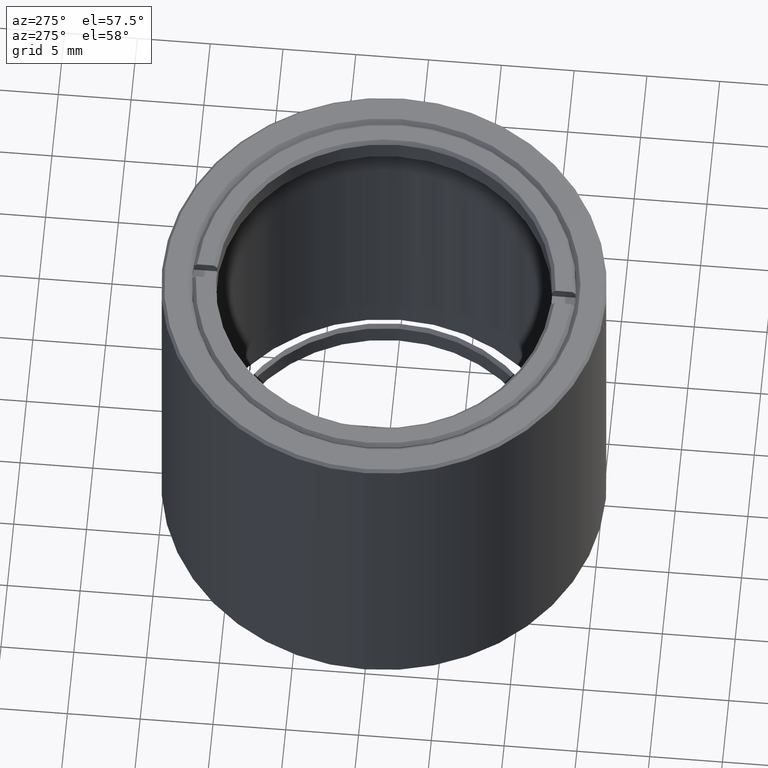
[diagram: clean part render]
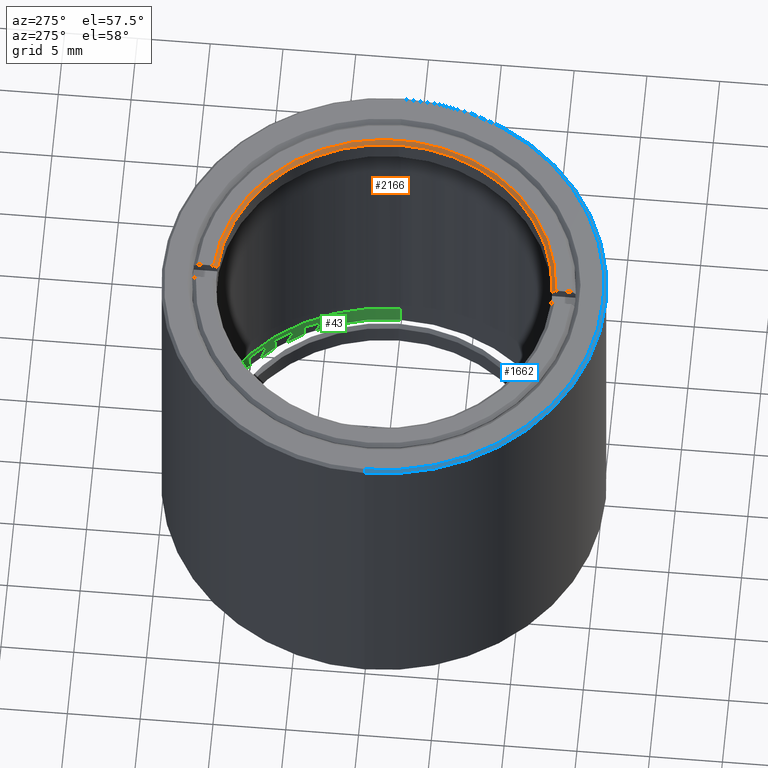
[diagram: same view with three faces highlighted in distinct colors, each labeled with its STEP entity id]
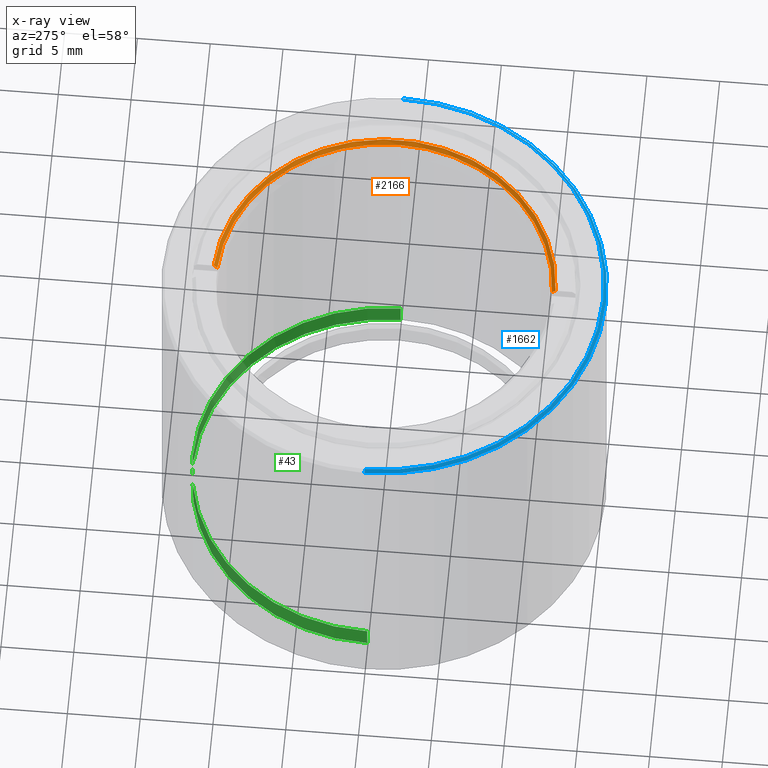
[diagram: x-ray of the same camera — body ghosted, the three highlighted faces saturated]
A machine part, auxiliary view with three faces highlighted in distinct colors.
The next image is the same camera in x-ray (body ghosted, the three faces saturated) — at least one of them is partly hidden behind the body in this view.
Their STEP definitions:

[orange] entity #2166 — the highlighted conical surface has half-angle 45 deg.
#52 = EDGE_CURVE ( 'NONE', #2064, #2510, #151, .T. ) ;
#109 = CARTESIAN_POINT ( 'NONE',  ( 8.082668874372534964E-16, 3.614585319625988684E-31, -6.599999999999997868 ) ) ;
#151 = CIRCLE ( 'NONE', #316, 11.50449999999998951 ) ;
#180 = VERTEX_POINT ( 'NONE', #2103 ) ;
#184 = DIRECTION ( 'NONE',  ( -1.224646799147355179E-16, -7.395570986447007571E-32, 1.000000000000000000 ) ) ;
#232 = CARTESIAN_POINT ( 'NONE',  ( 0.5000000000000027756, -11.57704085897316482, -6.516667506019574674 ) ) ;
#316 = AXIS2_PLACEMENT_3D ( 'NONE', #109, #2047, #681 ) ;
#388 = EDGE_CURVE ( 'NONE', #180, #1162, #1129, .T. ) ;
#444 = ORIENTED_EDGE ( 'NONE', *, *, #52, .F. ) ;
#465 = DIRECTION ( 'NONE',  ( -1.000000000000000000, -1.010643099614858211E-15, -1.475795206922292275E-16 ) ) ;
#482 = ORIENTED_EDGE ( 'NONE', *, *, #1656, .F. ) ;
#652 = CARTESIAN_POINT ( 'NONE',  ( 0.4999999999999970024, 11.66045131105721033, -6.433334154664869686 ) ) ;
#681 = DIRECTION ( 'NONE',  ( -1.000000000000000000, -1.224646799147353207E-16, -1.507865162307626328E-16 ) ) ;
#767 = DIRECTION ( 'NONE',  ( -1.000000000000000000, -1.224646799147353207E-16, -1.507865162307626328E-16 ) ) ;
#853 = CARTESIAN_POINT ( 'NONE',  ( 0.4999999999999970024, 11.49362955075548243, -6.599999999999996980 ) ) ;
#898 = CARTESIAN_POINT ( 'NONE',  ( 0.4999999999999970024, 11.74386096009313896, -6.350000000000004974 ) ) ;
#952 = B_SPLINE_CURVE_WITH_KNOTS ( 'NONE', 3,
 ( #853, #1812, #652, #2189 ),
 .UNSPECIFIED., .F., .F.,
 ( 4, 4 ),
 ( 0.05235194261833580470, 0.05270834856698515536 ),
 .UNSPECIFIED. ) ;
#967 = CARTESIAN_POINT ( 'NONE',  ( 8.082668874372534964E-16, 3.614585319625988684E-31, -6.599999999999997868 ) ) ;
#975 = DIRECTION ( 'NONE',  ( -1.000000000000000000, -1.224646799147353207E-16, -1.507865162307626328E-16 ) ) ;
#1002 = EDGE_LOOP ( 'NONE', ( #2231, #482, #1093, #444, #1281 ) ) ;
#1004 = DIRECTION ( 'NONE',  ( 1.224646799147355179E-16, 7.395570986447007571E-32, -1.000000000000000000 ) ) ;
#1021 = CARTESIAN_POINT ( 'NONE',  ( 0.5000000000000027756, -11.66045131090377396, -6.433334154818168393 ) ) ;
#1093 = ORIENTED_EDGE ( 'NONE', *, *, #1838, .F. ) ;
#1129 = B_SPLINE_CURVE_WITH_KNOTS ( 'NONE', 3,
 ( #1415, #1021, #232, #2167 ),
 .UNSPECIFIED., .F., .F.,
 ( 4, 4 ),
 ( 0.01995356277718629209, 0.02030727983553809457 ),
 .UNSPECIFIED. ) ;
#1162 = VERTEX_POINT ( 'NONE', #2325 ) ;
#1281 = ORIENTED_EDGE ( 'NONE', *, *, #2284, .F. ) ;
#1357 = DIRECTION ( 'NONE',  ( -1.224646799147355179E-16, -7.395570986447007571E-32, 1.000000000000000000 ) ) ;
#1415 = CARTESIAN_POINT ( 'NONE',  ( 0.5000000000000026645, -11.74386096009313896, -6.350000000000004974 ) ) ;
#1452 = CIRCLE ( 'NONE', #1533, 11.75449999999999129 ) ;
#1504 = FACE_OUTER_BOUND ( 'NONE', #1002, .T. ) ;
#1533 = AXIS2_PLACEMENT_3D ( 'NONE', #1833, #1004, #465 ) ;
#1656 = EDGE_CURVE ( 'NONE', #2003, #180, #1452, .T. ) ;
#1669 = AXIS2_PLACEMENT_3D ( 'NONE', #967, #184, #975 ) ;
#1703 = CARTESIAN_POINT ( 'NONE',  ( 11.50449999999999839, 1.408894910079073451E-15, -6.599999999999996092 ) ) ;
#1812 = CARTESIAN_POINT ( 'NONE',  ( 0.4999999999999970579, 11.57704085912994074, -6.516667505862946186 ) ) ;
#1833 = CARTESIAN_POINT ( 'NONE',  ( 7.776507174585717801E-16, 1.131830509717493429E-30, -6.350000000000005862 ) ) ;
#1838 = EDGE_CURVE ( 'NONE', #2510, #2003, #952, .T. ) ;
#1866 = CIRCLE ( 'NONE', #2045, 11.50449999999998951 ) ;
#2003 = VERTEX_POINT ( 'NONE', #898 ) ;
#2045 = AXIS2_PLACEMENT_3D ( 'NONE', #2454, #1357, #767 ) ;
#2047 = DIRECTION ( 'NONE',  ( -1.224646799147355179E-16, -7.395570986447007571E-32, 1.000000000000000000 ) ) ;
#2064 = VERTEX_POINT ( 'NONE', #1703 ) ;
#2103 = CARTESIAN_POINT ( 'NONE',  ( 0.5000000000000026645, -11.74386096009313896, -6.350000000000004974 ) ) ;
#2166 = ADVANCED_FACE ( 'NONE', ( #1504 ), #2272, .F. ) ;
#2167 = CARTESIAN_POINT ( 'NONE',  ( 0.5000000000000026645, -11.49362955075548243, -6.599999999999997868 ) ) ;
#2189 = CARTESIAN_POINT ( 'NONE',  ( 0.4999999999999970024, 11.74386096009313896, -6.350000000000004974 ) ) ;
#2231 = ORIENTED_EDGE ( 'NONE', *, *, #388, .F. ) ;
#2272 = CONICAL_SURFACE ( 'NONE', #1669, 11.50449999999998951, 0.7853981633974517207 ) ;
#2284 = EDGE_CURVE ( 'NONE', #1162, #2064, #1866, .T. ) ;
#2325 = CARTESIAN_POINT ( 'NONE',  ( 0.5000000000000026645, -11.49362955075548243, -6.599999999999997868 ) ) ;
#2454 = CARTESIAN_POINT ( 'NONE',  ( 8.082668874372534964E-16, 3.614585319625988684E-31, -6.599999999999997868 ) ) ;
#2488 = CARTESIAN_POINT ( 'NONE',  ( 0.4999999999999970024, 11.49362955075548243, -6.599999999999996980 ) ) ;
#2510 = VERTEX_POINT ( 'NONE', #2488 ) ;

[blue] entity #1662 — the highlighted conical surface has half-angle 45 deg.
#41 = CARTESIAN_POINT ( 'NONE',  ( -15.05000000000000426, -3.710679801416482404E-15, -6.349999999999999645 ) ) ;
#172 = CARTESIAN_POINT ( 'NONE',  ( 7.776507174585642859E-16, -1.216263278479431880E-30, -6.349999999999997868 ) ) ;
#191 = DIRECTION ( 'NONE',  ( 1.000000000000000000, 1.224646799147353207E-16, 1.152640183373293474E-16 ) ) ;
#312 = CIRCLE ( 'NONE', #542, 15.25000000000000000 ) ;
#542 = AXIS2_PLACEMENT_3D ( 'NONE', #2253, #1105, #2456 ) ;
#574 = VERTEX_POINT ( 'NONE', #2179 ) ;
#585 = DIRECTION ( 'NONE',  ( -1.224646799147353207E-16, -0.000000000000000000, 1.000000000000000000 ) ) ;
#776 = EDGE_LOOP ( 'NONE', ( #917, #2059, #1878, #1434 ) ) ;
#777 = CARTESIAN_POINT ( 'NONE',  ( 15.25000000000000000, 1.867586368699712587E-15, -6.549999999999993605 ) ) ;
#917 = ORIENTED_EDGE ( 'NONE', *, *, #1132, .F. ) ;
#982 = VERTEX_POINT ( 'NONE', #777 ) ;
#1105 = DIRECTION ( 'NONE',  ( 1.224646799147353207E-16, 0.000000000000000000, -1.000000000000000000 ) ) ;
#1132 = EDGE_CURVE ( 'NONE', #1856, #1268, #1560, .T. ) ;
#1237 = DIRECTION ( 'NONE',  ( 1.224646799147353207E-16, 0.000000000000000000, -1.000000000000000000 ) ) ;
#1268 = VERTEX_POINT ( 'NONE', #1604 ) ;
#1315 = DIRECTION ( 'NONE',  ( -0.7071067811865443531, -1.731912112470979423E-16, -0.7071067811865506814 ) ) ;
#1434 = ORIENTED_EDGE ( 'NONE', *, *, #2366, .F. ) ;
#1560 = CIRCLE ( 'NONE', #2089, 15.05000000000000426 ) ;
#1577 = CARTESIAN_POINT ( 'NONE',  ( 15.25000000000000000, 1.867586368699712587E-15, -6.549999999999993605 ) ) ;
#1598 = DIRECTION ( 'NONE',  ( 1.000000000000000000, 1.224646799147353207E-16, 1.137523590804463576E-16 ) ) ;
#1604 = CARTESIAN_POINT ( 'NONE',  ( 15.05000000000000426, 1.843093432716765873E-15, -6.349999999999996092 ) ) ;
#1662 = ADVANCED_FACE ( 'NONE', ( #1699 ), #1911, .T. ) ;
#1672 = CARTESIAN_POINT ( 'NONE',  ( -15.25000000000000000, -3.735172737399429118E-15, -6.549999999999997158 ) ) ;
#1699 = FACE_OUTER_BOUND ( 'NONE', #776, .T. ) ;
#1762 = DIRECTION ( 'NONE',  ( 0.7071067811865445751, 8.659560562354897113E-17, -0.7071067811865504593 ) ) ;
#1856 = VERTEX_POINT ( 'NONE', #41 ) ;
#1872 = VECTOR ( 'NONE', #1315, 1000.000000000000000 ) ;
#1878 = ORIENTED_EDGE ( 'NONE', *, *, #2062, .F. ) ;
#1911 = CONICAL_SURFACE ( 'NONE', #2165, 15.25000000000000000, 0.7853981633974439491 ) ;
#1962 = LINE ( 'NONE', #1577, #2135 ) ;
#2017 = EDGE_CURVE ( 'NONE', #1856, #574, #2110, .T. ) ;
#2022 = CARTESIAN_POINT ( 'NONE',  ( 8.021436534415110000E-16, -1.216263278479431880E-30, -6.549999999999995381 ) ) ;
#2059 = ORIENTED_EDGE ( 'NONE', *, *, #2017, .T. ) ;
#2062 = EDGE_CURVE ( 'NONE', #982, #574, #312, .T. ) ;
#2089 = AXIS2_PLACEMENT_3D ( 'NONE', #172, #585, #191 ) ;
#2110 = LINE ( 'NONE', #1672, #1872 ) ;
#2135 = VECTOR ( 'NONE', #1762, 1000.000000000000000 ) ;
#2165 = AXIS2_PLACEMENT_3D ( 'NONE', #2022, #1237, #1598 ) ;
#2179 = CARTESIAN_POINT ( 'NONE',  ( -15.25000000000000178, -3.735172737399429907E-15, -6.549999999999997158 ) ) ;
#2253 = CARTESIAN_POINT ( 'NONE',  ( 8.021436534415110000E-16, -1.216263278479431880E-30, -6.549999999999995381 ) ) ;
#2366 = EDGE_CURVE ( 'NONE', #1268, #982, #1962, .T. ) ;
#2456 = DIRECTION ( 'NONE',  ( 1.000000000000000000, 1.224646799147353207E-16, 1.137523590804463576E-16 ) ) ;

[green] entity #43 — the highlighted cylindrical surface (partial cylindrical patch) has radius 13.1445 mm, axis along (-0, 0, 1).
#43 = ADVANCED_FACE ( 'NONE', ( #1192 ), #1172, .T. ) ;
#48 = VERTEX_POINT ( 'NONE', #1293 ) ;
#115 = DIRECTION ( 'NONE',  ( 1.000000000000000000, 1.224646799147353207E-16, 0.000000000000000000 ) ) ;
#116 = DIRECTION ( 'NONE',  ( 1.224646799147355179E-16, -7.395570986447003192E-32, -1.000000000000000000 ) ) ;
#160 = DIRECTION ( 'NONE',  ( 1.224646799147355179E-16, -7.395570986447003192E-32, -1.000000000000000000 ) ) ;
#166 = VERTEX_POINT ( 'NONE', #2259 ) ;
#203 = AXIS2_PLACEMENT_3D ( 'NONE', #1741, #2122, #381 ) ;
#208 = DIRECTION ( 'NONE',  ( 1.000000000000000000, 1.224646799147353207E-16, 0.000000000000000000 ) ) ;
#226 = DIRECTION ( 'NONE',  ( -1.224646799147355179E-16, 7.395570986447003192E-32, 1.000000000000000000 ) ) ;
#284 = VECTOR ( 'NONE', #1458, 1000.000000000000000 ) ;
#337 = CARTESIAN_POINT ( 'NONE',  ( -0.4999999999999951150, 13.13498687665882514, -31.74999999999999289 ) ) ;
#381 = DIRECTION ( 'NONE',  ( 1.000000000000000000, -7.657137397853875204E-16, 0.000000000000000000 ) ) ;
#421 = VECTOR ( 'NONE', #116, 1000.000000000000000 ) ;
#494 = CARTESIAN_POINT ( 'NONE',  ( 3.888253587292847265E-15, 1.131830509717493429E-30, -31.74999999999999289 ) ) ;
#549 = VECTOR ( 'NONE', #876, 1000.000000000000000 ) ;
#626 = VECTOR ( 'NONE', #769, 1000.000000000000000 ) ;
#638 = VERTEX_POINT ( 'NONE', #869 ) ;
#656 = EDGE_CURVE ( 'NONE', #48, #1223, #2266, .T. ) ;
#691 = EDGE_LOOP ( 'NONE', ( #1499, #852, #1084, #1250, #1646, #1227, #2268, #884 ) ) ;
#697 = CARTESIAN_POINT ( 'NONE',  ( 13.14449999999999008, 5.668347708513938116E-30, -31.74999999999999289 ) ) ;
#752 = CARTESIAN_POINT ( 'NONE',  ( 3.673940397442061544E-15, 1.035534012498131636E-30, -30.00000000000000355 ) ) ;
#769 = DIRECTION ( 'NONE',  ( -1.224646799147355179E-16, 7.395570986447003192E-32, 1.000000000000000000 ) ) ;
#779 = EDGE_CURVE ( 'NONE', #2386, #1873, #1950, .T. ) ;
#829 = AXIS2_PLACEMENT_3D ( 'NONE', #959, #160, #1135 ) ;
#852 = ORIENTED_EDGE ( 'NONE', *, *, #1216, .T. ) ;
#869 = CARTESIAN_POINT ( 'NONE',  ( -13.14449999999997765, -1.609736985139235087E-15, -31.49999999999999289 ) ) ;
#876 = DIRECTION ( 'NONE',  ( -1.224646799147355179E-16, 7.395570986447003192E-32, 1.000000000000000000 ) ) ;
#884 = ORIENTED_EDGE ( 'NONE', *, *, #1742, .T. ) ;
#934 = AXIS2_PLACEMENT_3D ( 'NONE', #494, #2215, #1071 ) ;
#959 = CARTESIAN_POINT ( 'NONE',  ( 3.802528311352532977E-15, 4.577550291819607924E-31, -31.04999999999999716 ) ) ;
#1071 = DIRECTION ( 'NONE',  ( -1.000000000000000000, -1.224646799147353207E-16, 0.000000000000000000 ) ) ;
#1084 = ORIENTED_EDGE ( 'NONE', *, *, #1813, .T. ) ;
#1126 = CARTESIAN_POINT ( 'NONE',  ( -0.4999999999999952260, 13.13498687665882514, -31.04999999999999716 ) ) ;
#1130 = VERTEX_POINT ( 'NONE', #1763 ) ;
#1135 = DIRECTION ( 'NONE',  ( 1.000000000000000000, 1.224646799147353207E-16, 0.000000000000000000 ) ) ;
#1172 = CYLINDRICAL_SURFACE ( 'NONE', #934, 13.14449999999998653 ) ;
#1192 = FACE_OUTER_BOUND ( 'NONE', #691, .T. ) ;
#1216 = EDGE_CURVE ( 'NONE', #48, #1437, #2410, .T. ) ;
#1223 = VERTEX_POINT ( 'NONE', #2313 ) ;
#1227 = ORIENTED_EDGE ( 'NONE', *, *, #1474, .T. ) ;
#1243 = CARTESIAN_POINT ( 'NONE',  ( -13.14449999999998298, -1.609736985139235678E-15, -31.74999999999999289 ) ) ;
#1250 = ORIENTED_EDGE ( 'NONE', *, *, #2458, .F. ) ;
#1261 = AXIS2_PLACEMENT_3D ( 'NONE', #752, #2086, #115 ) ;
#1293 = CARTESIAN_POINT ( 'NONE',  ( 13.14450000000000252, 5.742303418378411476E-30, -31.49999999999999289 ) ) ;
#1318 = CARTESIAN_POINT ( 'NONE',  ( 0.5000000000000031086, 13.13498687665882514, -31.49999999999999289 ) ) ;
#1397 = CIRCLE ( 'NONE', #203, 13.14449999999998653 ) ;
#1399 = EDGE_CURVE ( 'NONE', #638, #166, #2026, .T. ) ;
#1426 = CIRCLE ( 'NONE', #1261, 13.14449999999998653 ) ;
#1437 = VERTEX_POINT ( 'NONE', #1318 ) ;
#1458 = DIRECTION ( 'NONE',  ( -1.224646799147355179E-16, 7.395570986447003192E-32, 1.000000000000000000 ) ) ;
#1474 = EDGE_CURVE ( 'NONE', #1873, #638, #1397, .T. ) ;
#1499 = ORIENTED_EDGE ( 'NONE', *, *, #656, .F. ) ;
#1646 = ORIENTED_EDGE ( 'NONE', *, *, #779, .T. ) ;
#1663 = LINE ( 'NONE', #2306, #626 ) ;
#1741 = CARTESIAN_POINT ( 'NONE',  ( 3.857637417314164267E-15, 1.131830509717493604E-30, -31.49999999999999289 ) ) ;
#1742 = EDGE_CURVE ( 'NONE', #166, #1223, #1426, .T. ) ;
#1763 = CARTESIAN_POINT ( 'NONE',  ( 0.5000000000000029976, 13.13498687665882514, -31.04999999999999716 ) ) ;
#1813 = EDGE_CURVE ( 'NONE', #1437, #1130, #1663, .T. ) ;
#1873 = VERTEX_POINT ( 'NONE', #2194 ) ;
#1950 = LINE ( 'NONE', #337, #421 ) ;
#2026 = LINE ( 'NONE', #1243, #284 ) ;
#2086 = DIRECTION ( 'NONE',  ( 1.224646799147355179E-16, -7.395570986447003192E-32, -1.000000000000000000 ) ) ;
#2122 = DIRECTION ( 'NONE',  ( -1.224646799147355179E-16, 7.395570986447003192E-32, 1.000000000000000000 ) ) ;
#2174 = CARTESIAN_POINT ( 'NONE',  ( 3.857637417314164267E-15, 1.131830509717493604E-30, -31.49999999999999289 ) ) ;
#2194 = CARTESIAN_POINT ( 'NONE',  ( -0.4999999999999951150, 13.13498687665882692, -31.49999999999999289 ) ) ;
#2215 = DIRECTION ( 'NONE',  ( -1.224646799147355179E-16, 7.395570986447003192E-32, 1.000000000000000000 ) ) ;
#2240 = CIRCLE ( 'NONE', #829, 13.14449999999998653 ) ;
#2259 = CARTESIAN_POINT ( 'NONE',  ( -13.14449999999999541, -1.609736985139237059E-15, -30.00000000000000355 ) ) ;
#2266 = LINE ( 'NONE', #697, #549 ) ;
#2268 = ORIENTED_EDGE ( 'NONE', *, *, #1399, .T. ) ;
#2306 = CARTESIAN_POINT ( 'NONE',  ( 0.5000000000000031086, 13.13498687665882514, -31.74999999999999289 ) ) ;
#2313 = CARTESIAN_POINT ( 'NONE',  ( 13.14450000000000252, 5.742303418378412177E-30, -30.00000000000000355 ) ) ;
#2386 = VERTEX_POINT ( 'NONE', #1126 ) ;
#2410 = CIRCLE ( 'NONE', #2424, 13.14449999999998653 ) ;
#2424 = AXIS2_PLACEMENT_3D ( 'NONE', #2174, #226, #208 ) ;
#2458 = EDGE_CURVE ( 'NONE', #2386, #1130, #2240, .T. ) ;